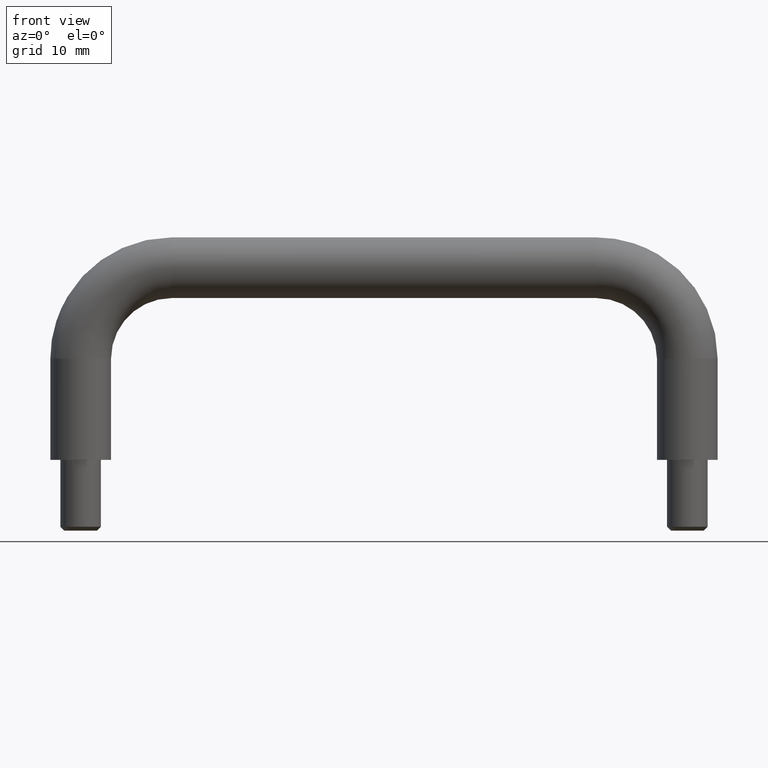
[diagram: clean part render]
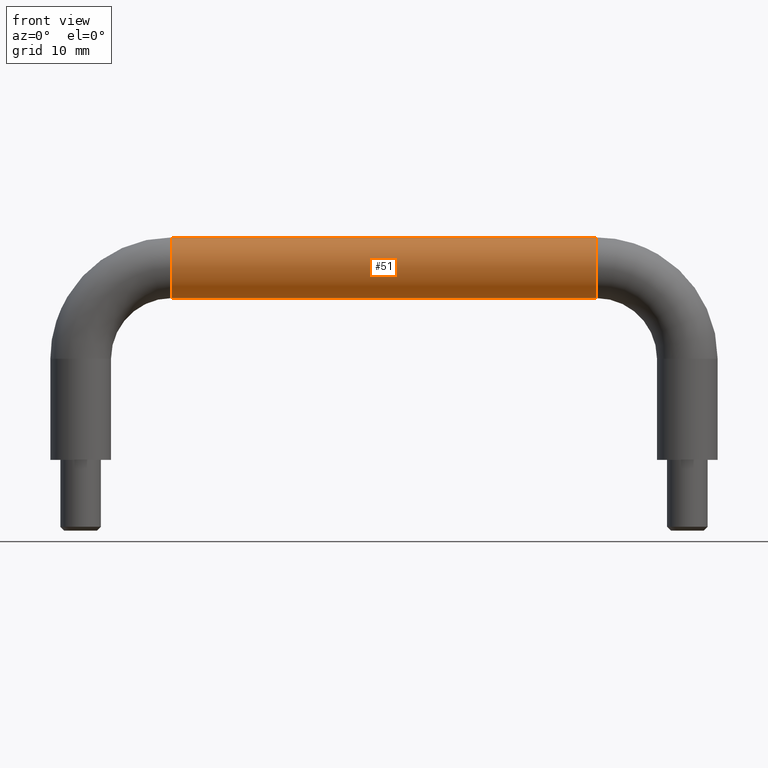
[diagram: same view with one face highlighted and labeled with its STEP entity id]
A machine part, front view. The second image highlights one B-rep face of the part: STEP entity #51.
In plain terms, the highlighted cylindrical surface (edge-blend (fillet) strip) has radius 3 mm, axis along (-1, -0, 0).
Its self-contained STEP definition (entity closure, byte-faithful):
#51=ADVANCED_FACE('',(#175),#174,.T.);
#174=CYLINDRICAL_SURFACE('',#524,3.00000000000E+00);
#175=FACE_OUTER_BOUND('',#525,.T.);
#521=CARTESIAN_POINT('',(0.00000000000E+00,0.00000000000E+00,3.00000000000E+00));
#522=DIRECTION('',(-1.00000000000E+00,-0.00000000000E+00,0.00000000000E+00));
#523=DIRECTION('',(0.00000000000E+00,-0.00000000000E+00,1.00000000000E+00));
#524=AXIS2_PLACEMENT_3D('',#521,#522,#523);
#525=EDGE_LOOP('',(#640,#641,#642,#643));
#640=ORIENTED_EDGE('',*,*,#684,.T.);
#641=ORIENTED_EDGE('',*,*,#710,.T.);
#642=ORIENTED_EDGE('',*,*,#698,.F.);
#643=ORIENTED_EDGE('',*,*,#711,.F.);
#684=EDGE_CURVE('',#726,#727,#728,.T.);
#698=EDGE_CURVE('',#816,#823,#824,.T.);
#710=EDGE_CURVE('',#727,#823,#902,.T.);
#711=EDGE_CURVE('',#726,#816,#908,.T.);
#726=VERTEX_POINT('',#1002);
#727=VERTEX_POINT('',#1003);
#728=CIRCLE('',#1007,3.00000000000E+00);
#816=VERTEX_POINT('',#1067);
#823=VERTEX_POINT('',#1072);
#824=CIRCLE('',#1076,3.00000000000E+00);
#902=(BOUNDED_CURVE() B_SPLINE_CURVE(1,(#1124,#1125),.UNSPECIFIED.,.F.,.F.) B_SPLINE_CURVE_WITH_KNOTS((2,2),(8.33333335810E-02,9.16666666255E-01),.UNSPECIFIED.) CURVE() GEOMETRIC_REPRESENTATION_ITEM() RATIONAL_B_SPLINE_CURVE((1.00000000000E+00,1.00000000000E+00)) REPRESENTATION_ITEM('') );
#908=(BOUNDED_CURVE() B_SPLINE_CURVE(1,(#1126,#1127),.UNSPECIFIED.,.F.,.F.) B_SPLINE_CURVE_WITH_KNOTS((2,2),(8.33333333333E-02,9.16666666667E-01),.UNSPECIFIED.) CURVE() GEOMETRIC_REPRESENTATION_ITEM() RATIONAL_B_SPLINE_CURVE((7.50000000000E-01,7.50000000000E-01)) REPRESENTATION_ITEM('') );
#1002=CARTESIAN_POINT('',(2.10000000001E+01,-1.48029736617E-16,7.40148683083E-17));
#1003=CARTESIAN_POINT('',(2.10000000001E+01,0.00000000000E+00,6.00000000000E+00));
#1004=CARTESIAN_POINT('',(2.10000000001E+01,0.00000000000E+00,3.00000000000E+00));
#1005=DIRECTION('',(-1.00000000000E+00,-0.00000000000E+00,0.00000000000E+00));
#1006=DIRECTION('',(-0.00000000000E+00,4.93432455390E-17,1.00000000000E+00));
#1007=AXIS2_PLACEMENT_3D('',#1004,#1005,#1006);
#1067=CARTESIAN_POINT('',(-2.10000000001E+01,-1.48029736617E-16,7.40148683083E-17));
#1072=CARTESIAN_POINT('',(-2.10000000001E+01,0.00000000000E+00,6.00000000000E+00));
#1073=CARTESIAN_POINT('',(-2.10000000001E+01,0.00000000000E+00,3.00000000000E+00));
#1074=DIRECTION('',(-1.00000000000E+00,-0.00000000000E+00,0.00000000000E+00));
#1075=DIRECTION('',(-0.00000000000E+00,4.93432455390E-17,1.00000000000E+00));
#1076=AXIS2_PLACEMENT_3D('',#1073,#1074,#1075);
#1124=CARTESIAN_POINT('',(2.09999999876E+01,0.00000000000E+00,6.00000000000E+00));
#1125=CARTESIAN_POINT('',(-2.09999999794E+01,0.00000000000E+00,6.00000000000E+00));
#1126=CARTESIAN_POINT('',(2.10000000001E+01,-1.48029736617E-16,1.48029736617E-16));
#1127=CARTESIAN_POINT('',(-2.10000000001E+01,-1.48029736617E-16,1.48029736617E-16));